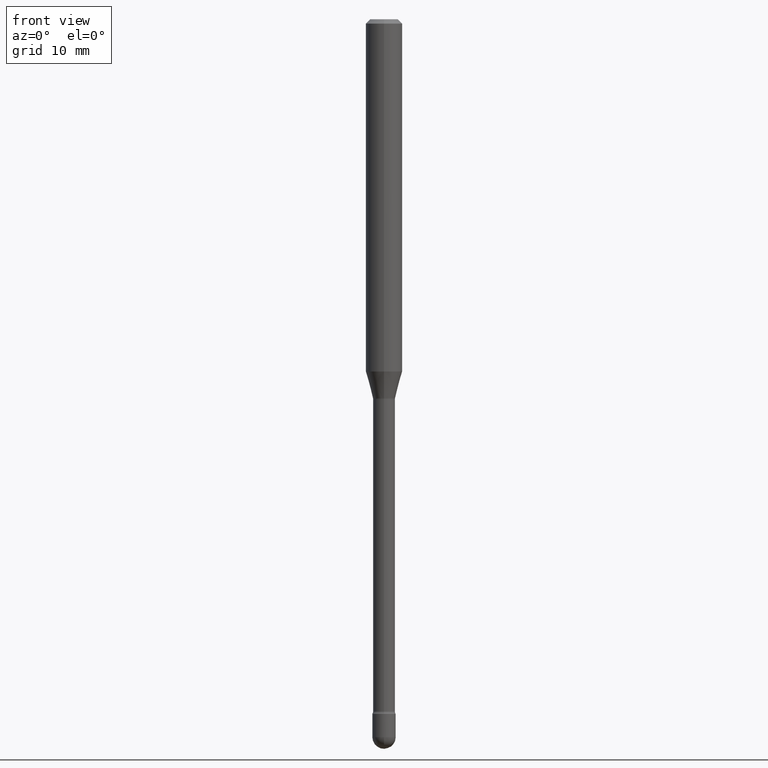
[diagram: clean part render]
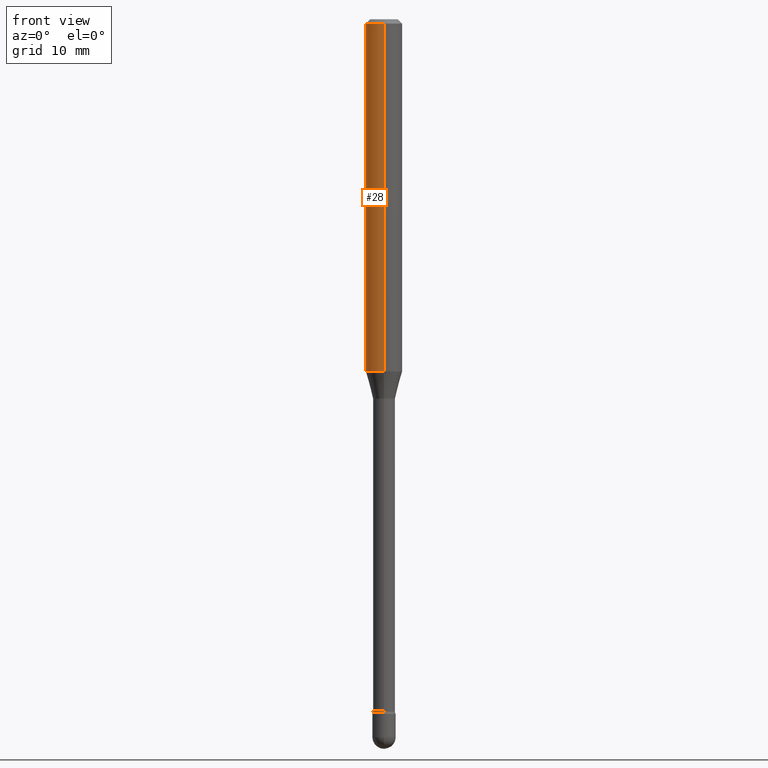
[diagram: same view with one face highlighted and labeled with its STEP entity id]
A machine part, front view. The second image highlights one B-rep face of the part: STEP entity #28.
In plain terms, the highlighted cylindrical surface (edge-blend (fillet) strip) has radius 1.5875 mm, axis along (-0, 0, 1).
Its self-contained STEP definition (entity closure, byte-faithful):
#28 = ADVANCED_FACE ( 'NONE', ( #248 ), #294, .T. ) ;
#32 = EDGE_CURVE ( 'NONE', #382, #416, #339, .T. ) ;
#65 = DIRECTION ( 'NONE',  ( -2.445460948409306574E-29, 3.491492591625370773E-15, 1.000000000000000000 ) ) ;
#67 = ORIENTED_EDGE ( 'NONE', *, *, #32, .T. ) ;
#115 = CARTESIAN_POINT ( 'NONE',  ( -4.364351673553916201E-16, -0.06250000000000000000, 6.962916858678317119E-16 ) ) ;
#131 = VERTEX_POINT ( 'NONE', #448 ) ;
#136 = CIRCLE ( 'NONE', #560, 0.06250000000000000000 ) ;
#143 = CARTESIAN_POINT ( 'NONE',  ( 2.951847278698110549E-29, -4.214482718232697663E-15, -1.207071934891535303 ) ) ;
#152 = CARTESIAN_POINT ( 'NONE',  ( 4.440892098500918040E-16, 0.06249999999999574646, -1.207071934891535525 ) ) ;
#170 = EDGE_CURVE ( 'NONE', #416, #206, #246, .T. ) ;
#171 = EDGE_LOOP ( 'NONE', ( #550, #67, #224, #309 ) ) ;
#184 = DIRECTION ( 'NONE',  ( -6.982962677686265922E-15, -1.000000000000000000, 3.491492591625369984E-15 ) ) ;
#187 = AXIS2_PLACEMENT_3D ( 'NONE', #143, #488, #363 ) ;
#198 = DIRECTION ( 'NONE',  ( -2.445460948409306855E-29, 3.491492591625370773E-15, 1.000000000000000000 ) ) ;
#206 = VERTEX_POINT ( 'NONE', #341 ) ;
#224 = ORIENTED_EDGE ( 'NONE', *, *, #170, .T. ) ;
#237 = DIRECTION ( 'NONE',  ( -2.445460948409306855E-29, 3.491492591625370773E-15, 1.000000000000000000 ) ) ;
#246 = LINE ( 'NONE', #115, #420 ) ;
#248 = FACE_OUTER_BOUND ( 'NONE', #171, .T. ) ;
#275 = DIRECTION ( 'NONE',  ( -6.982962677686265922E-15, -1.000000000000000000, 3.483106191921935554E-15 ) ) ;
#294 = CYLINDRICAL_SURFACE ( 'NONE', #408, 0.06250000000000000000 ) ;
#309 = ORIENTED_EDGE ( 'NONE', *, *, #470, .F. ) ;
#321 = DIRECTION ( 'NONE',  ( -2.445460948409306574E-29, 3.491492591625370773E-15, 1.000000000000000000 ) ) ;
#339 = CIRCLE ( 'NONE', #187, 0.06250000000000000000 ) ;
#341 = CARTESIAN_POINT ( 'NONE',  ( -4.364351673553912750E-16, -0.06250000000000005551, -0.01499999999999986587 ) ) ;
#360 = LINE ( 'NONE', #442, #524 ) ;
#362 = CARTESIAN_POINT ( 'NONE',  ( -4.364351673553623829E-16, -0.06250000000000424660, -1.207071934891535081 ) ) ;
#363 = DIRECTION ( 'NONE',  ( -6.982962677686265922E-15, -1.000000000000000000, 4.370956789862821150E-15 ) ) ;
#382 = VERTEX_POINT ( 'NONE', #152 ) ;
#408 = AXIS2_PLACEMENT_3D ( 'NONE', #519, #65, #184 ) ;
#416 = VERTEX_POINT ( 'NONE', #362 ) ;
#420 = VECTOR ( 'NONE', #198, 39.37007874015748143 ) ;
#442 = CARTESIAN_POINT ( 'NONE',  ( 4.440892098500625669E-16, 0.06250000000000000000, 2.598551119146604146E-16 ) ) ;
#448 = CARTESIAN_POINT ( 'NONE',  ( 4.440892098500922971E-16, 0.06249999999999995143, -0.01500000000000030129 ) ) ;
#470 = EDGE_CURVE ( 'NONE', #131, #206, #136, .T. ) ;
#488 = DIRECTION ( 'NONE',  ( -2.445460948409306574E-29, 3.491492591625370773E-15, 1.000000000000000000 ) ) ;
#491 = EDGE_CURVE ( 'NONE', #382, #131, #360, .T. ) ;
#519 = CARTESIAN_POINT ( 'NONE',  ( -1.169113584055446105E-44, 1.669184350826100908E-30, 4.780733988912460139E-16 ) ) ;
#524 = VECTOR ( 'NONE', #237, 39.37007874015748143 ) ;
#550 = ORIENTED_EDGE ( 'NONE', *, *, #491, .F. ) ;
#557 = CARTESIAN_POINT ( 'NONE',  ( 3.668191422613980058E-31, -5.237238887438085372E-17, -0.01500000000000008271 ) ) ;
#560 = AXIS2_PLACEMENT_3D ( 'NONE', #557, #321, #275 ) ;